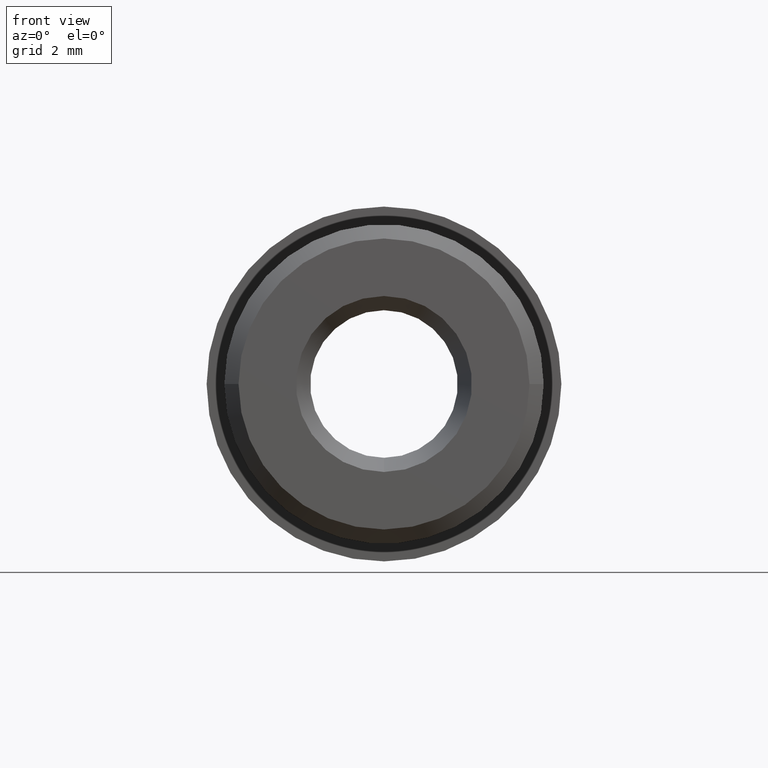
[diagram: clean part render]
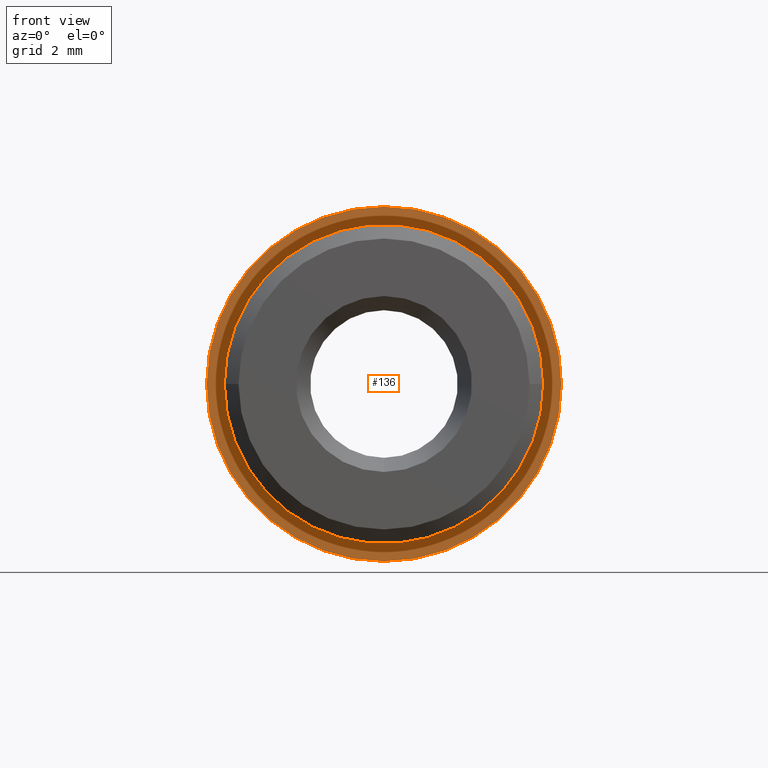
[diagram: same view with one face highlighted and labeled with its STEP entity id]
A machine part, front view. The second image highlights one B-rep face of the part: STEP entity #136.
In plain terms, the highlighted planar face has unit normal (-0, 1, 0).
Its self-contained STEP definition (entity closure, byte-faithful):
#26 = EDGE_CURVE ( 'NONE', #27, #79, #205, .T. ) ;
#27 = VERTEX_POINT ( 'NONE', #201 ) ;
#60 = ORIENTED_EDGE ( 'NONE', *, *, #61, .F. ) ;
#61 = EDGE_CURVE ( 'NONE', #79, #27, #256, .T. ) ;
#62 = EDGE_LOOP ( 'NONE', ( #119, #120 ) ) ;
#63 = VERTEX_POINT ( 'NONE', #313 ) ;
#65 = EDGE_CURVE ( 'NONE', #66, #63, #312, .T. ) ;
#66 = VERTEX_POINT ( 'NONE', #307 ) ;
#79 = VERTEX_POINT ( 'NONE', #285 ) ;
#119 = ORIENTED_EDGE ( 'NONE', *, *, #65, .T. ) ;
#120 = ORIENTED_EDGE ( 'NONE', *, *, #135, .T. ) ;
#135 = EDGE_CURVE ( 'NONE', #63, #66, #428, .T. ) ;
#136 = ADVANCED_FACE ( 'NONE', ( #424, #423 ), #422, .F. ) ;
#137 = EDGE_LOOP ( 'NONE', ( #138, #60 ) ) ;
#138 = ORIENTED_EDGE ( 'NONE', *, *, #26, .F. ) ;
#201 = CARTESIAN_POINT ( 'NONE',  ( 0.1125000000000023200, 0.2250000000000025900, 0.0000000000000000000 ) ) ;
#202 = DIRECTION ( 'NONE',  ( 1.000000000000000000, 3.338925325589625100E-015, 0.0000000000000000000 ) ) ;
#203 = DIRECTION ( 'NONE',  ( 3.483106191921942700E-015, -1.000000000000000000, 0.0000000000000000000 ) ) ;
#204 = AXIS2_PLACEMENT_3D ( 'NONE', #211, #203, #202 ) ;
#205 = CIRCLE ( 'NONE', #204, 0.1125000000000010000 ) ;
#211 = CARTESIAN_POINT ( 'NONE',  ( 1.316409251946961300E-015, 0.2250000000000022000, 0.0000000000000000000 ) ) ;
#256 = CIRCLE ( 'NONE', #317, 0.1125000000000010000 ) ;
#285 = CARTESIAN_POINT ( 'NONE',  ( -0.1124999999999996800, 0.2250000000000018400, 1.377682148050199600E-017 ) ) ;
#307 = CARTESIAN_POINT ( 'NONE',  ( 0.1250000000000014400, 0.2250000000000027300, 0.0000000000000000000 ) ) ;
#308 = DIRECTION ( 'NONE',  ( 1.000000000000000000, 3.551402391763539200E-015, 0.0000000000000000000 ) ) ;
#309 = DIRECTION ( 'NONE',  ( 3.483106191921942700E-015, -1.000000000000000000, 0.0000000000000000000 ) ) ;
#310 = CARTESIAN_POINT ( 'NONE',  ( 1.316409251946961100E-015, 0.2250000000000022800, 0.0000000000000000000 ) ) ;
#311 = AXIS2_PLACEMENT_3D ( 'NONE', #310, #309, #308 ) ;
#312 = CIRCLE ( 'NONE', #311, 0.1250000000000001100 ) ;
#313 = CARTESIAN_POINT ( 'NONE',  ( -0.1249999999999988100, 0.2250000000000018400, 1.530757942277972800E-017 ) ) ;
#314 = DIRECTION ( 'NONE',  ( 1.000000000000000000, 3.338925325589625100E-015, 0.0000000000000000000 ) ) ;
#315 = DIRECTION ( 'NONE',  ( 3.483106191921942700E-015, -1.000000000000000000, 0.0000000000000000000 ) ) ;
#316 = CARTESIAN_POINT ( 'NONE',  ( 1.316409251946961300E-015, 0.2250000000000022000, 0.0000000000000000000 ) ) ;
#317 = AXIS2_PLACEMENT_3D ( 'NONE', #316, #315, #314 ) ;
#418 = DIRECTION ( 'NONE',  ( -1.000000000000000000, -3.483106191921942300E-015, 0.0000000000000000000 ) ) ;
#419 = DIRECTION ( 'NONE',  ( -3.483106191921942300E-015, 1.000000000000000000, 0.0000000000000000000 ) ) ;
#420 = CARTESIAN_POINT ( 'NONE',  ( 1.396976790403073300E-015, 0.2250000000000022500, 0.0000000000000000000 ) ) ;
#421 = AXIS2_PLACEMENT_3D ( 'NONE', #420, #419, #418 ) ;
#422 = PLANE ( 'NONE',  #421 ) ;
#423 = FACE_OUTER_BOUND ( 'NONE', #62, .T. ) ;
#424 = FACE_BOUND ( 'NONE', #137, .T. ) ;
#425 = DIRECTION ( 'NONE',  ( 1.000000000000000000, 3.551402391763539200E-015, 0.0000000000000000000 ) ) ;
#426 = DIRECTION ( 'NONE',  ( 3.483106191921942700E-015, -1.000000000000000000, 0.0000000000000000000 ) ) ;
#427 = AXIS2_PLACEMENT_3D ( 'NONE', #433, #426, #425 ) ;
#428 = CIRCLE ( 'NONE', #427, 0.1250000000000001100 ) ;
#433 = CARTESIAN_POINT ( 'NONE',  ( 1.316409251946961100E-015, 0.2250000000000022800, 0.0000000000000000000 ) ) ;